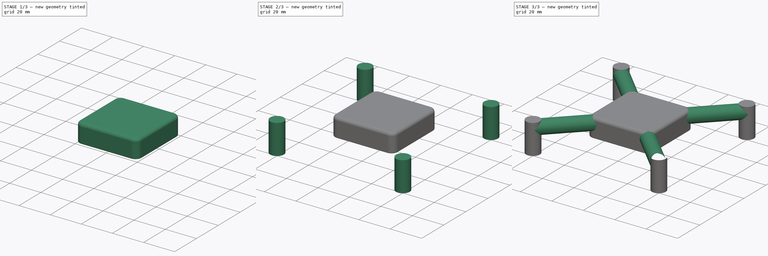
[diagram: build sequence overview — one tinted view per stage of 3, left to right]
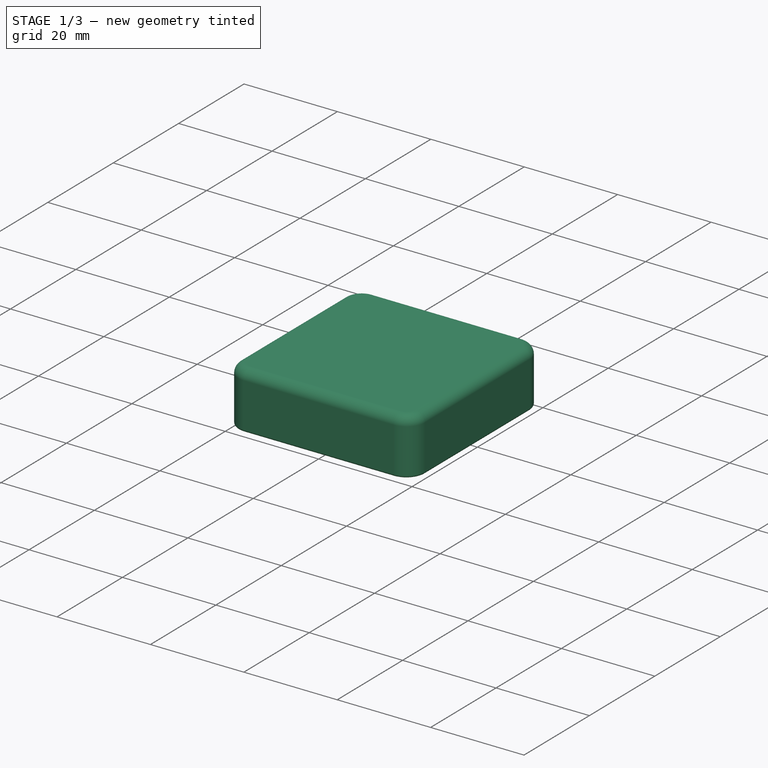
[diagram: stage 1 of 3 — iso view after this stage's code; geometry added in this stage tinted green]
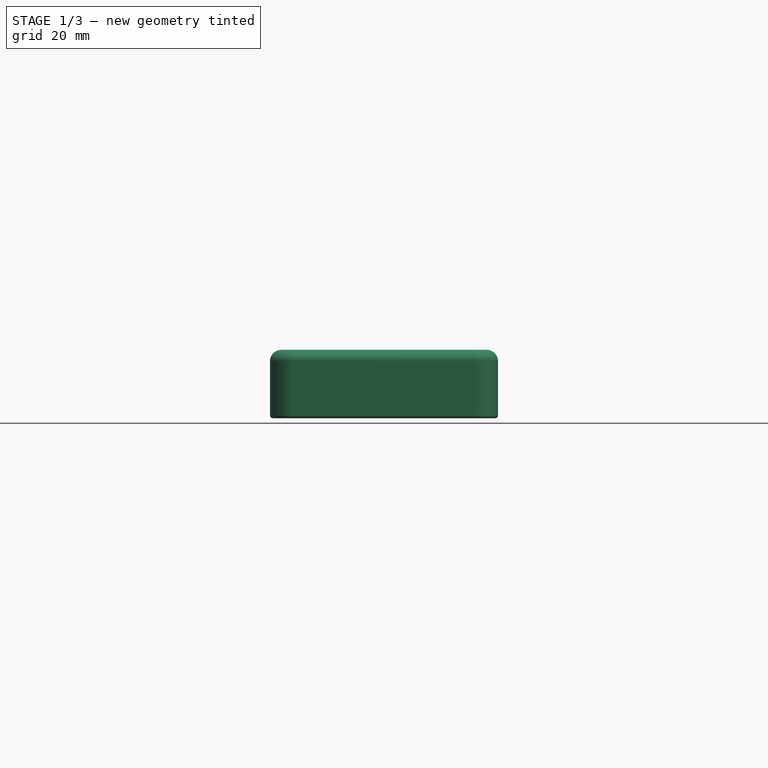
[diagram: stage 1 of 3 — front view after this stage's code; geometry added in this stage tinted green]
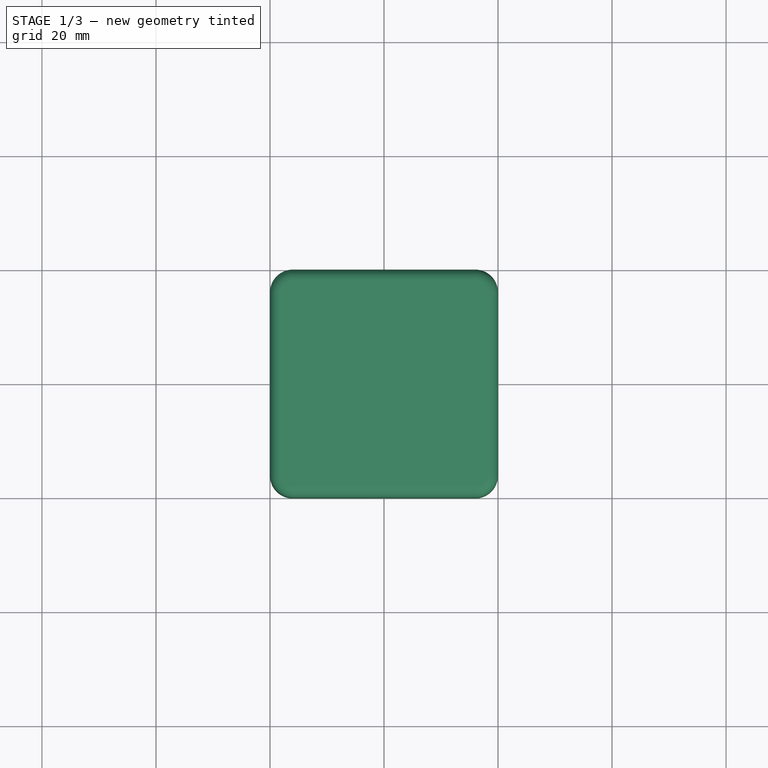
[diagram: stage 1 of 3 — top view after this stage's code; geometry added in this stage tinted green]
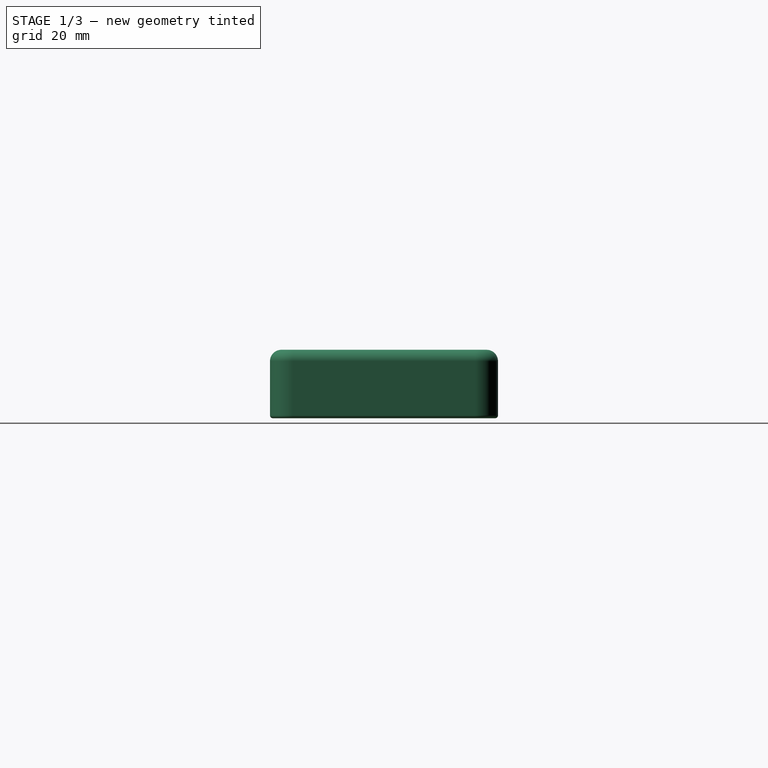
[diagram: stage 1 of 3 — right view after this stage's code; geometry added in this stage tinted green]
FCSTD DOCUMENT  (FreeCAD 2023.131R26244 +5365 (Git))
Label: LAG2011 Water Block
License: All rights reserved
LicenseURL: http://en.wikipedia.org/wiki/All_rights_reserved
objects: Sketcher::SketchObject×3, PartDesign::Pad×3, PartDesign::Fillet×2, Spreadsheet::Sheet×1, PartDesign::AdditiveCylinder×1, PartDesign::PolarPattern×1, PartDesign::Pocket×1, PartDesign::Body×1
note: 31 computed .brp shape members not serialized (recipe doc carries the construction recipe); baked Part::Feature solids carry a one-line shape summary decoded from their .brp

FEATURE [Spreadsheet::Sheet] Spreadsheet  label="Parameters"
  PythonMode = false
  ShowCells = 0
  TreeRank = 1
  cells = A2=Mounting Holes; A3=Vertical Spacing; B3(Mounting_Holes_Vertical_Spacing)=80; A4=Horizontal Spacing; B4(Mounting_Holes_Horizontal_Spacing)=80; A5=Mounting Hole Diameter; B5(Mounting_Hole_Diameter)=5.75; A6=Mounting Hole Depth; B6(Mounting_Hole_Depth)=3.5; A7=Screw Hole Diameter; B7(Screw_Hole_Diameter)=4; C7=M4 bolts; A8=Foot Diameter; B8(Foot_Diameter)==B5 + 2 * B9; C8=Mounting Hole Diameter + 2 * Wall Thickness; A9=Wall Thickness; B9(Wall_Thickness)=1.5; A11=Water Block Body; A12=Height Above Mounting Holes; B12(Water_Block_Height_Above_Mounting_Holes)=7; C12=The distance between the top of the mounting hole in the motherboard and the top of the mounted CPU.; A13=Width; B13(Water_Block_Width)=40; C13=The width of the water block.; A14=Length; B14(Water_Block_Length)=40; C14=The length of the water block,; A15=Base Thickness; B15(Water_Block_Base_Thickness)=4; C15=The thickness between the bottom of the water block and the water channels. (4mm is ideal); A16=Top Thickness; B16(Water_Block_Top_Thickness)=4; C16=The thickness between the water channels and the top of the water block.; A17=Corner Radius; B17(Water_Block_Corner_Radius)=4; A18=Top Fillet; B18(Water_Block_Top_Fillet)=2; A19=Bottom Fillet; B19(Water_Block_Bottom_Fillet)=0.5; A20=Total Thickness; B20(Water_Block_Total_Thickness)==B15 + B16 + B23; A22=Water Channels; A23=Diameter; B23(Water_Channels_Diameter)=4
FEATURE [Sketcher::SketchObject] Sketch
  ArcFitTolerance = 1e-06
  AttachmentSupport = -> [XY_Plane]
  ExternalBSplineMaxDegree = 5
  ExternalBSplineTolerance = 0.0001
  FullyConstrained = false
  InternalTolerance = 1e-06
  InvalidShape = false
  MakeInternals = false
  MapMode = 5
  Support = -> [XY_Plane]
  TreeRank = 12
  ValidateShape = true
  expr: Constraints[10] = <<Parameters>>.Water_Block_Length
  expr: Constraints[19] = <<Parameters>>.Water_Block_Corner_Radius
  expr: Constraints[20] = <<Parameters>>.Water_Block_Corner_Radius
  expr: Constraints[21] = <<Parameters>>.Water_Block_Corner_Radius
  expr: Constraints[22] = <<Parameters>>.Water_Block_Corner_Radius
  expr: Constraints[23] = <<Parameters>>.Water_Block_Width / 2
  expr: Constraints[24] = <<Parameters>>.Water_Block_Length / 2
  expr: Constraints[9] = <<Parameters>>.Water_Block_Width
  sketch-geometry (13):
    g0: LineSegment StartX=-20 StartY=-16 StartZ=0 EndX=-20 EndY=16 EndZ=0
    g1: LineSegment StartX=-16 StartY=20 StartZ=0 EndX=16 EndY=20 EndZ=0
    g2: LineSegment StartX=20 StartY=16 StartZ=0 EndX=20 EndY=-16 EndZ=0
    g3: LineSegment StartX=16 StartY=-20 StartZ=0 EndX=-16 EndY=-20 EndZ=0
    g4: GeomPoint [constr] X=0 Y=0 Z=0
    g5: GeomPoint [constr] X=-20 Y=0.000895311 Z=0
    g6: GeomPoint [constr] X=20 Y=-3.19829e-08 Z=0
    g7: GeomPoint [constr] X=-0.000330858 Y=20 Z=0
    g8: GeomPoint [constr] X=-3.99443e-05 Y=-20 Z=0
    g9: ArcOfCircle CenterX=-16 CenterY=16 CenterZ=0 NormalX=0 NormalY=0 NormalZ=1 AngleXU=0 Radius=4 StartAngle=1.5708 EndAngle=3.14159
    g10: ArcOfCircle CenterX=16 CenterY=16 CenterZ=0 NormalX=0 NormalY=0 NormalZ=1 AngleXU=0 Radius=4 StartAngle=1e-16 EndAngle=1.5708
    g11: ArcOfCircle CenterX=16 CenterY=-16 CenterZ=0 NormalX=0 NormalY=0 NormalZ=1 AngleXU=0 Radius=4 StartAngle=4.71239 EndAngle=6.28319
    g12: ArcOfCircle CenterX=-16 CenterY=-16 CenterZ=0 NormalX=0 NormalY=0 NormalZ=1 AngleXU=0 Radius=4 StartAngle=3.14159 EndAngle=4.71239
  constraints (25):
    c: Horizontal(g1)
    c: Horizontal(g3)
    c: Vertical(g0)
    c: Vertical(g2)
    c: Coincident(g4,g-1)
    c: PointOnObject(g5,g0)
    c: PointOnObject(g6,g2)
    c: PointOnObject(g7,g1)
    c: PointOnObject(g8,g3)
    c: Distance(g5,g6) = 40
    c: Distance(g8,g7) = 40
    c: Tangent(g0,g9) = 1.5708
    c: Tangent(g1,g9) = 1.5708
    c: Tangent(g1,g10) = 1.5708
    c: Tangent(g2,g10) = 1.5708
    c: Tangent(g2,g11) = 1.5708
    c: Tangent(g3,g11) = 1.5708
    c: Tangent(g0,g12) = 1.5708
    c: Tangent(g3,g12) = 1.5708
    c: Radius(g9) = 4
    c: Radius(g10) = 4
    c: Radius(g11) = 4
    c: Radius(g12) = 4
    c: Distance(g5,g4) = 20
    c: Distance(g7,g4) = 20
FEATURE [PartDesign::Pad] Pad
  AddSubType = 0
  AlongSketchNormal = false
  AutoTaperInnerAngle = true
  CheckUpToFaceLimits = true
  ClaimChildren = false
  Direction = (0,0,1)
  Fit = 0
  FitJoin = 0
  InnerFit = 0
  InnerFitJoin = 0
  InvalidShape = false
  Length = 12
  Length2 = 100
  Linearize = true
  NewSolid = false
  Profile = -> Sketch
  Suppress = false
  TaperInnerAngle = 0
  TaperInnerAngleRev = 0
  TreeRank = 13
  Type = 0
  ValidateShape = true
  _ProfileBasedVersion = 1
  expr: Length = <<Parameters>>.Water_Block_Base_Thickness + <<Parameters>>.Water_Block_Top_Thickness + <<Parameters>>.Water_Channels_Diameter
FEATURE [PartDesign::Fillet] Fillet  label="Top Fillet"
  AddSubType = 0
  Base = -> Pad [Edge16,Edge19,Edge22,Edge24,Edge4,Edge7,Edge10,Edge13]
  BaseFeature = -> Pad
  InvalidShape = false
  NewSolid = false
  Radius = 2
  SupportTransform = false
  Suppress = false
  TreeRank = 14
  ValidateShape = true
  expr: Radius = <<Parameters>>.Water_Block_Top_Fillet
FEATURE [PartDesign::Fillet] Fillet001  label="Bottom Fillet"
  AddSubType = 0
  Base = -> Fillet [Edge12,Edge14,Edge13,Edge11,Edge3,Edge6,Edge16,Edge15]
  BaseFeature = -> Fillet
  InvalidShape = false
  NewSolid = false
  Radius = 0.5
  SupportTransform = false
  Suppress = false
  TreeRank = 15
  ValidateShape = true
  expr: Radius = <<Parameters>>.Water_Block_Bottom_Fillet
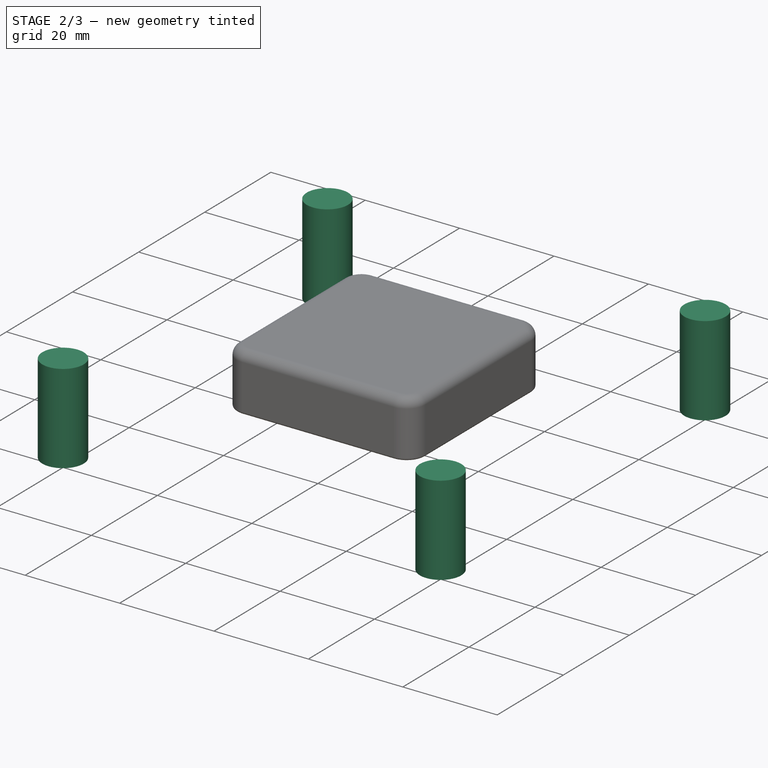
[diagram: stage 2 of 3 — iso view after this stage's code; geometry added in this stage tinted green]
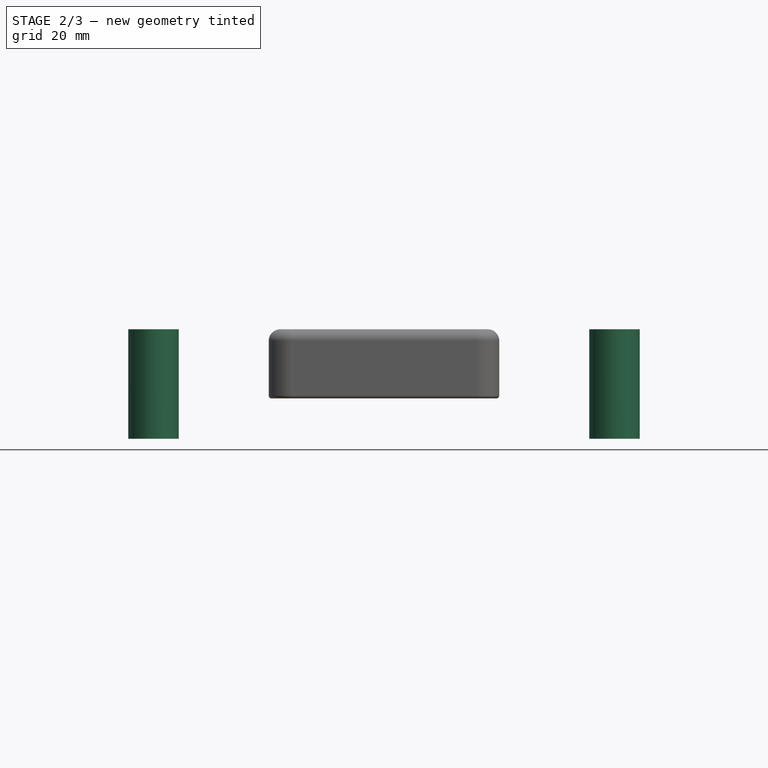
[diagram: stage 2 of 3 — front view after this stage's code; geometry added in this stage tinted green]
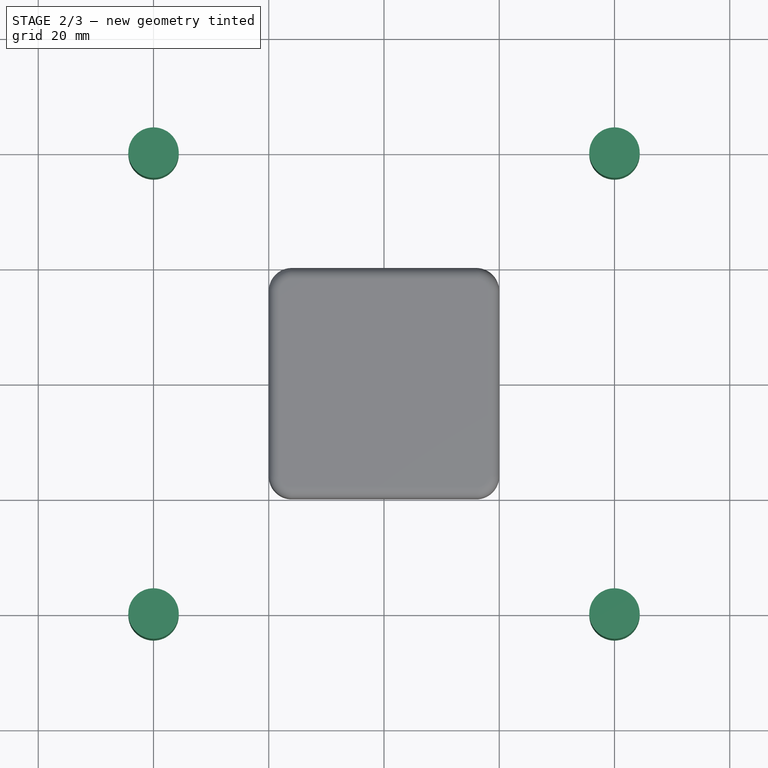
[diagram: stage 2 of 3 — top view after this stage's code; geometry added in this stage tinted green]
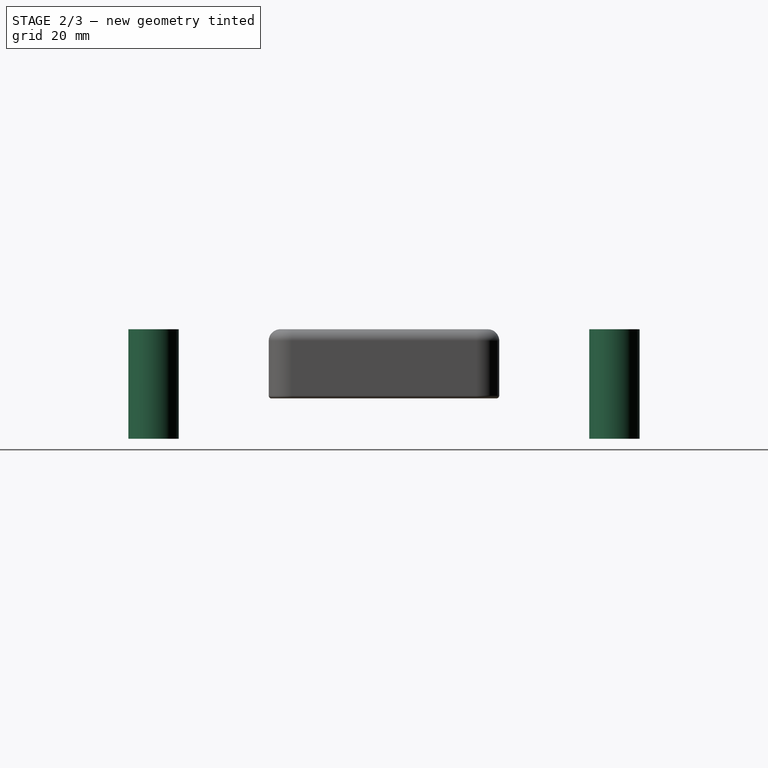
[diagram: stage 2 of 3 — right view after this stage's code; geometry added in this stage tinted green]
FEATURE [Sketcher::SketchObject] Sketch001  label="Feet Sketch"
  ArcFitTolerance = 1e-06
  AttachmentSupport = -> [XY_Plane]
  ExternalBSplineMaxDegree = 5
  ExternalBSplineTolerance = 0.0001
  FullyConstrained = true
  InternalTolerance = 1e-06
  InvalidShape = false
  MakeInternals = false
  MapMode = 5
  Support = -> [XY_Plane]
  TreeRank = 34
  ValidateShape = true
  expr: Constraints[12] = <<Parameters>>.Mounting_Holes_Vertical_Spacing
  expr: Constraints[13] = <<Parameters>>.Mounting_Holes_Horizontal_Spacing
  expr: Constraints[18] = <<Parameters>>.Mounting_Holes_Horizontal_Spacing / 2
  expr: Constraints[19] = <<Parameters>>.Mounting_Holes_Vertical_Spacing / 2
  expr: Constraints[3] = <<Parameters>>.Foot_Diameter
  sketch-geometry (8):
    g0: Circle CenterX=-40 CenterY=-40 CenterZ=0 NormalX=0 NormalY=0 NormalZ=1 AngleXU=0 Radius=4.375
    g1: Circle CenterX=40 CenterY=-40 CenterZ=0 NormalX=0 NormalY=0 NormalZ=1 AngleXU=0 Radius=4.375
    g2: Circle CenterX=40 CenterY=40 CenterZ=0 NormalX=0 NormalY=0 NormalZ=1 AngleXU=0 Radius=4.375
    g3: Circle CenterX=-40 CenterY=40 CenterZ=0 NormalX=0 NormalY=0 NormalZ=1 AngleXU=0 Radius=4.375
    g4: LineSegment [constr] StartX=-40 StartY=40 StartZ=0 EndX=40 EndY=40 EndZ=0
    g5: LineSegment [constr] StartX=40 StartY=40 StartZ=0 EndX=40 EndY=-40 EndZ=0
    g6: LineSegment [constr] StartX=40 StartY=-40 StartZ=0 EndX=-40 EndY=-40 EndZ=0
    g7: LineSegment [constr] StartX=-40 StartY=-40 StartZ=0 EndX=-40 EndY=40 EndZ=0
  constraints (20):
    c: Equal(g3,g2)
    c: Equal(g3,g1)
    c: Equal(g3,g0)
    c: Diameter(g3) = 8.75
    c: Coincident(g4,g5)
    c: Coincident(g5,g6)
    c: Coincident(g6,g7)
    c: Coincident(g7,g4)
    c: Horizontal(g4)
    c: Horizontal(g6)
    c: Vertical(g5)
    c: Vertical(g7)
    c: Distance(g4,g5) = 80
    c: Distance(g6,g5) = 80
    c: Coincident(g1,g5)
    c: Coincident(g2,g4)
    c: Coincident(g3,g4)
    c: Coincident(g0,g6)
    c: DistanceX(g-1,g5) = 40
    c: DistanceY(g5,g-1) = 40
FEATURE [PartDesign::Pad] Pad001  label="Feet"
  AddSubType = 0
  AlongSketchNormal = false
  AutoTaperInnerAngle = true
  BaseFeature = -> Fillet001
  CheckUpToFaceLimits = true
  ClaimChildren = false
  Direction = (0,0,1)
  Fit = 0
  FitJoin = 0
  InnerFit = 0
  InnerFitJoin = 0
  InvalidShape = false
  Length = 7
  Length2 = 100
  Linearize = true
  NewSolid = false
  Profile = -> Sketch001
  Reversed = true
  Suppress = false
  TaperInnerAngle = 0
  TaperInnerAngleRev = 0
  TreeRank = 35
  Type = 0
  ValidateShape = true
  _ProfileBasedVersion = 1
  expr: Length = <<Parameters>>.Water_Block_Height_Above_Mounting_Holes
FEATURE [PartDesign::Pad] Pad002
  AddSubType = 0
  AlongSketchNormal = false
  AutoTaperInnerAngle = true
  BaseFeature = -> Pad001
  CheckUpToFaceLimits = true
  ClaimChildren = false
  Direction = (0,0,1)
  Fit = 0
  FitJoin = 0
  InnerFit = 0
  InnerFitJoin = 0
  InvalidShape = false
  Length = 12
  Length2 = 100
  Linearize = true
  NewSolid = false
  Profile = -> Sketch001
  Suppress = false
  TaperInnerAngle = 0
  TaperInnerAngleRev = 0
  TreeRank = 36
  Type = 0
  ValidateShape = true
  _ProfileBasedVersion = 1
  expr: Length = <<Parameters>>.Water_Block_Total_Thickness
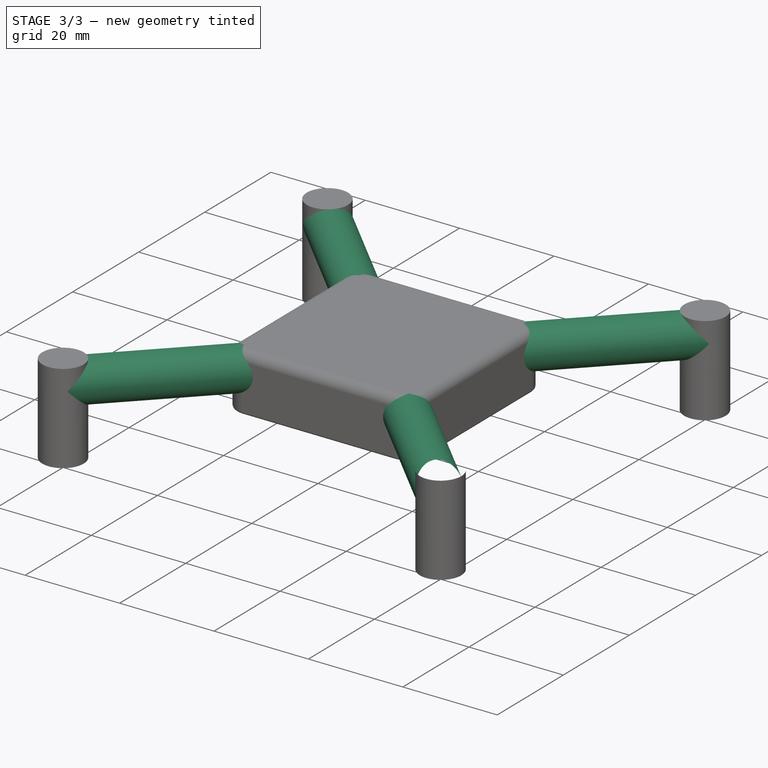
[diagram: stage 3 of 3 — iso view after this stage's code; geometry added in this stage tinted green]
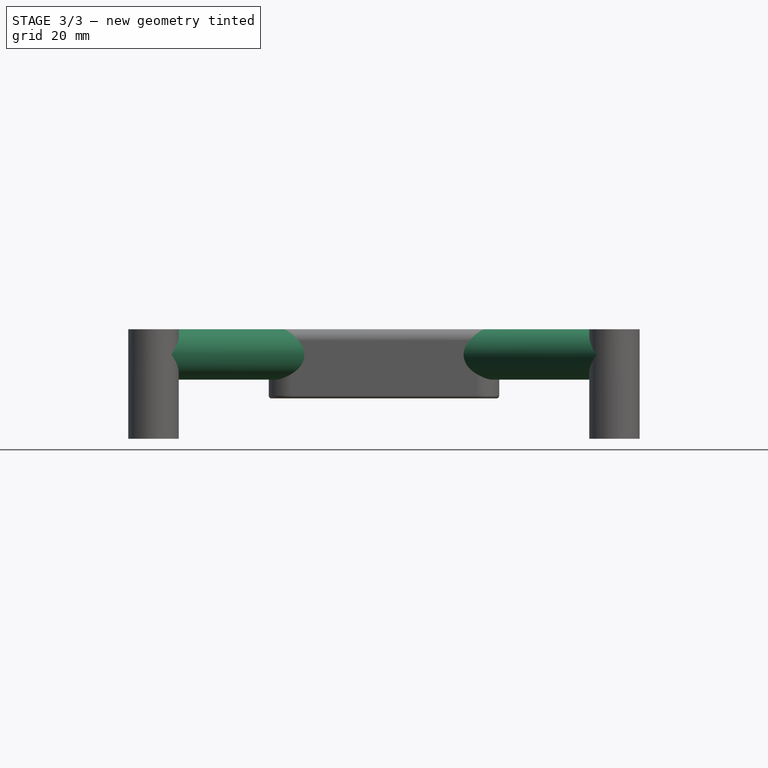
[diagram: stage 3 of 3 — front view after this stage's code; geometry added in this stage tinted green]
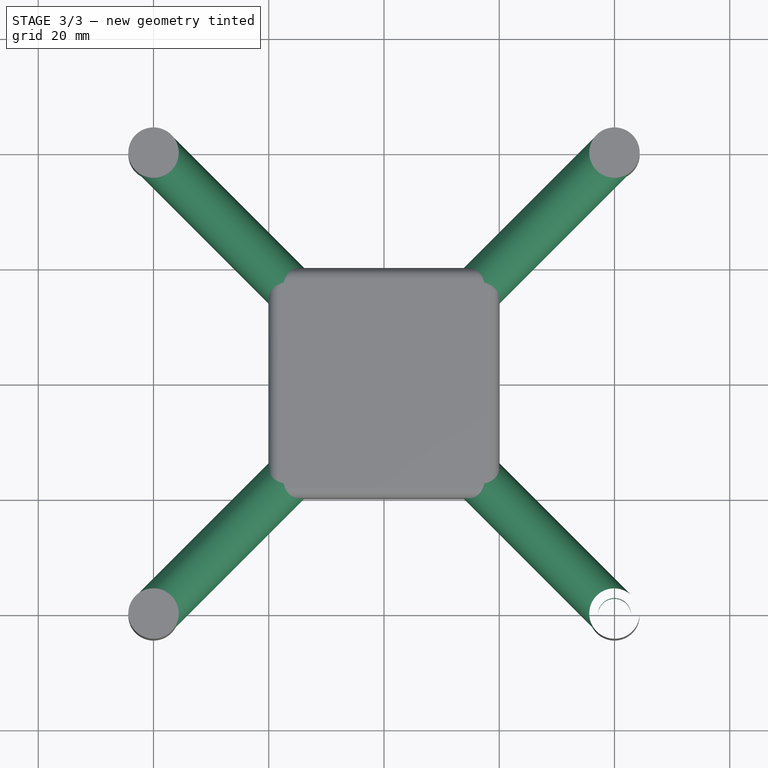
[diagram: stage 3 of 3 — top view after this stage's code; geometry added in this stage tinted green]
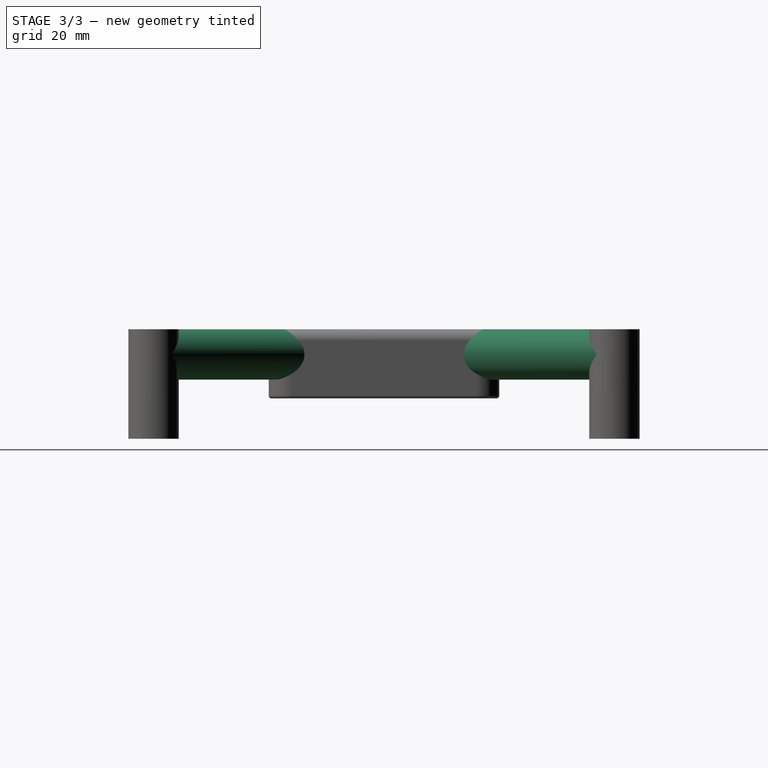
[diagram: stage 3 of 3 — right view after this stage's code; geometry added in this stage tinted green]
FEATURE [PartDesign::AdditiveCylinder] Cylinder
  AddSubType = 0
  Angle = 360
  AttacherType = Attacher::AttachEngine3D
  AttachmentOffset = pos=(0,0,-4.375) rot=(0.357407,0.862856,-0.357407;1.71777rad)
  AttachmentSupport = -> [Pad002]
  BaseFeature = -> Pad002
  FirstAngle = 0
  Height = 56.5685
  InvalidShape = false
  MapMode = 5
  NewSolid = false
  Placement = pos=(0,0,7.625) rot=(0.357407,0.862856,-0.357407;1.71777rad)
  Radius = 4.375
  SecondAngle = 0
  Support = -> [Pad002]
  Suppress = false
  TreeRank = 37
  ValidateShape = true
  expr: AttachmentOffset.Base.z = -<<Parameters>>.Foot_Diameter / 2
  expr: Height = sqrt(2) * <<Parameters>>.Mounting_Holes_Horizontal_Spacing / 2
  expr: Radius = <<Parameters>>.Foot_Diameter / 2
FEATURE [PartDesign::PolarPattern] PolarPattern
  AddSubType = 0
  Angle = 360
  Axis = -> Z_Axis
  BaseFeature = -> Cylinder
  CopyShape = false
  InvalidShape = false
  NewSolid = false
  Occurrences = 4
  OriginalSubs = -> [Cylinder]
  Originals = -> [Cylinder]
  ParallelTransform = true
  Placement = pos=(0,0,7.625) rot=(0.357407,0.862856,-0.357407;1.71777rad)
  SubTransform = true
  Suppress = false
  TreeRank = 38
  ValidateShape = true
  _Version = 3
FEATURE [Sketcher::SketchObject] Sketch002
  ArcFitTolerance = 1e-06
  AttachmentSupport = -> [XY_Plane]
  ExternalBSplineMaxDegree = 5
  ExternalBSplineTolerance = 0.0001
  FullyConstrained = true
  InternalTolerance = 1e-06
  InvalidShape = false
  MakeInternals = false
  MapMode = 5
  Support = -> [XY_Plane]
  TreeRank = 39
  ValidateShape = true
  expr: Constraints[10] = <<Parameters>>.Mounting_Holes_Vertical_Spacing / 2
  expr: Constraints[11] = <<Parameters>>.Mounting_Holes_Horizontal_Spacing / 2
  expr: Constraints[19] = <<Parameters>>.Mounting_Hole_Diameter
  expr: Constraints[8] = <<Parameters>>.Mounting_Holes_Vertical_Spacing
  expr: Constraints[9] = <<Parameters>>.Mounting_Holes_Horizontal_Spacing
  sketch-geometry (8):
    g0: LineSegment [constr] StartX=-40 StartY=40 StartZ=0 EndX=40 EndY=40 EndZ=0
    g1: LineSegment [constr] StartX=40 StartY=40 StartZ=0 EndX=40 EndY=-40 EndZ=0
    g2: LineSegment [constr] StartX=40 StartY=-40 StartZ=0 EndX=-40 EndY=-40 EndZ=0
    g3: LineSegment [constr] StartX=-40 StartY=-40 StartZ=0 EndX=-40 EndY=40 EndZ=0
    g4: Circle CenterX=-40 CenterY=40 CenterZ=0 NormalX=0 NormalY=0 NormalZ=1 AngleXU=0 Radius=2.875
    g5: Circle CenterX=40 CenterY=40 CenterZ=0 NormalX=0 NormalY=0 NormalZ=1 AngleXU=0 Radius=2.875
    g6: Circle CenterX=40 CenterY=-40 CenterZ=0 NormalX=0 NormalY=0 NormalZ=1 AngleXU=0 Radius=2.875
    g7: Circle CenterX=-40 CenterY=-40 CenterZ=0 NormalX=0 NormalY=0 NormalZ=1 AngleXU=0 Radius=2.875
  constraints (20):
    c: Coincident(g0,g1)
    c: Coincident(g1,g2)
    c: Coincident(g2,g3)
    c: Coincident(g3,g0)
    c: Horizontal(g0)
    c: Horizontal(g2)
    c: Vertical(g1)
    c: Vertical(g3)
    c: Distance(g0,g1) = 80
    c: Distance(g2,g1) = 80
    c: DistanceY(g-1,g0) = 40
    c: DistanceX(g2,g-1) = 40
    c: Coincident(g4,g0)
    c: Coincident(g5,g0)
    c: Coincident(g6,g1)
    c: Coincident(g7,g2)
    c: Equal(g4,g5)
    c: Equal(g4,g6)
    c: Equal(g4,g7)
    c: Diameter(g4) = 5.75
FEATURE [PartDesign::Pocket] Pocket
  AddSubType = 1
  AutoTaperInnerAngle = true
  BaseFeature = -> PolarPattern
  CheckUpToFaceLimits = true
  ClaimChildren = false
  Fit = 0
  FitJoin = 0
  InnerFit = 0
  InnerFitJoin = 0
  InvalidShape = false
  Length = 7
  Length2 = 100
  Linearize = true
  NewSolid = false
  Profile = -> Sketch002
  Suppress = false
  TaperInnerAngle = 0
  TaperInnerAngleRev = 0
  TreeRank = 40
  Type = 0
  ValidateShape = true
  _ProfileBasedVersion = 1
  _Version = 1
  expr: Length = <<Parameters>>.Water_Block_Height_Above_Mounting_Holes
FEATURE [PartDesign::Body] Body  label="Water Block"
  AutoGroupSolids = false
  ClaimAllChildren = false
  ExportMode = 0
  Group = -> [Sketch,Pad,Fillet,Fillet001,Sketch001,Pad001,Pad002,Cylinder,PolarPattern,Sketch002,Pocket]
  InvalidShape = false
  Origin = -> Origin
  Tip = -> Pocket
  TreeRank = 11
  ValidateShape = true
  _ExportChildren = -> [Pad,Fillet,Fillet001,Pad001,Pad002,Cylinder,PolarPattern,Pocket]
  _GroupVersion = 1
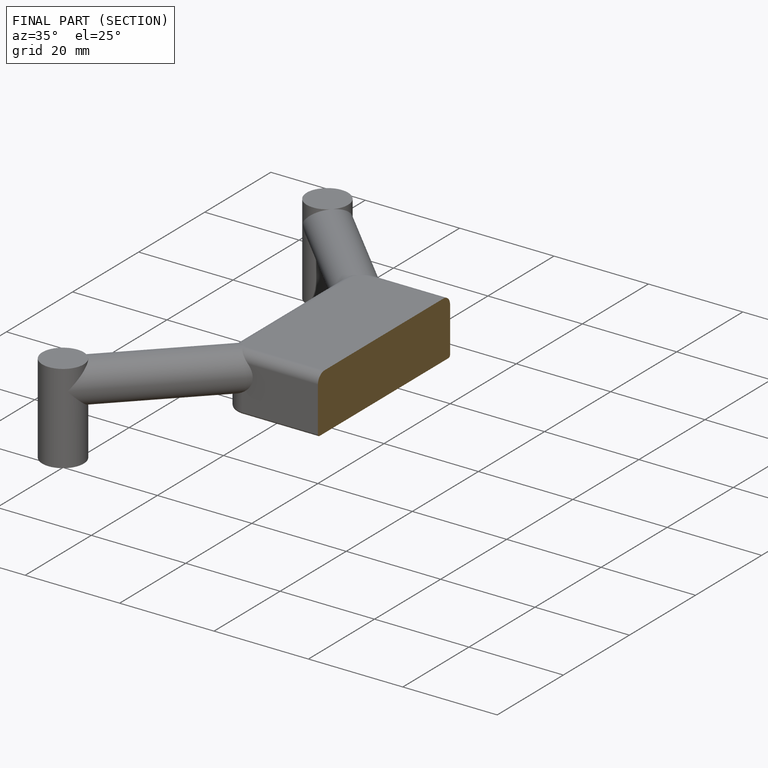
[diagram: finished part — half-section view (interior)]
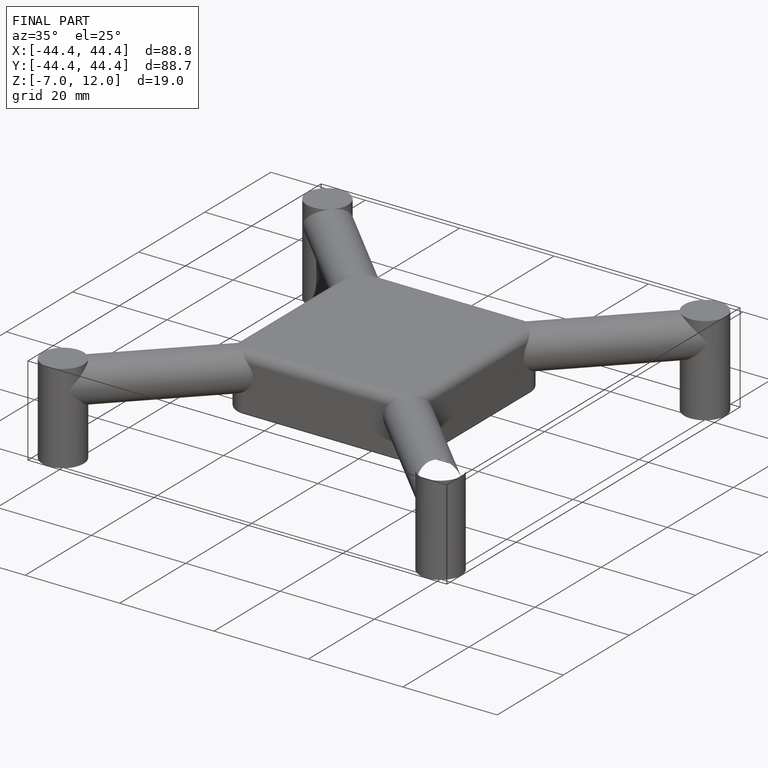
[diagram: finished part — iso view with bounding-box wireframe]
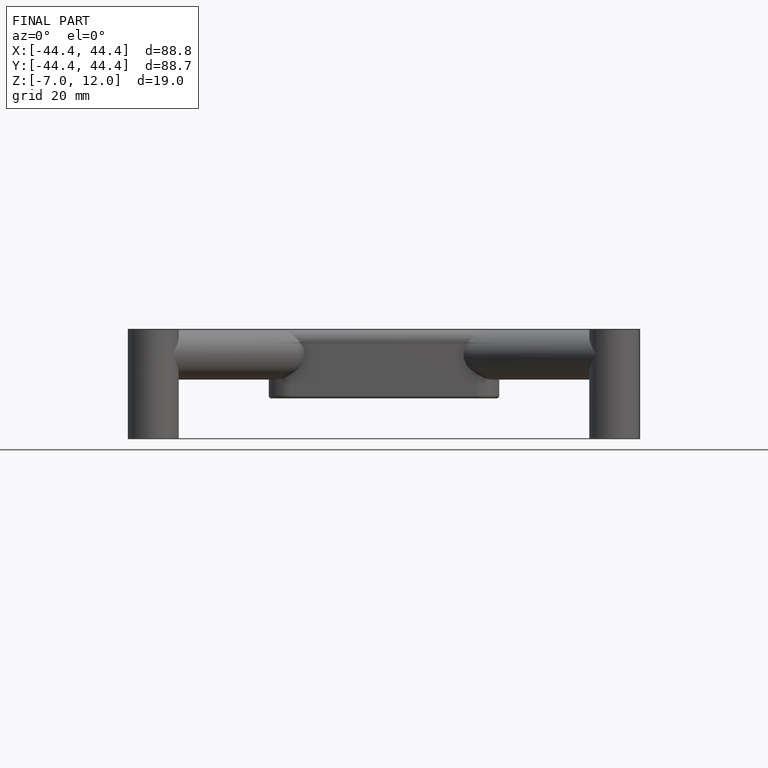
[diagram: finished part — front view with bounding-box wireframe]
